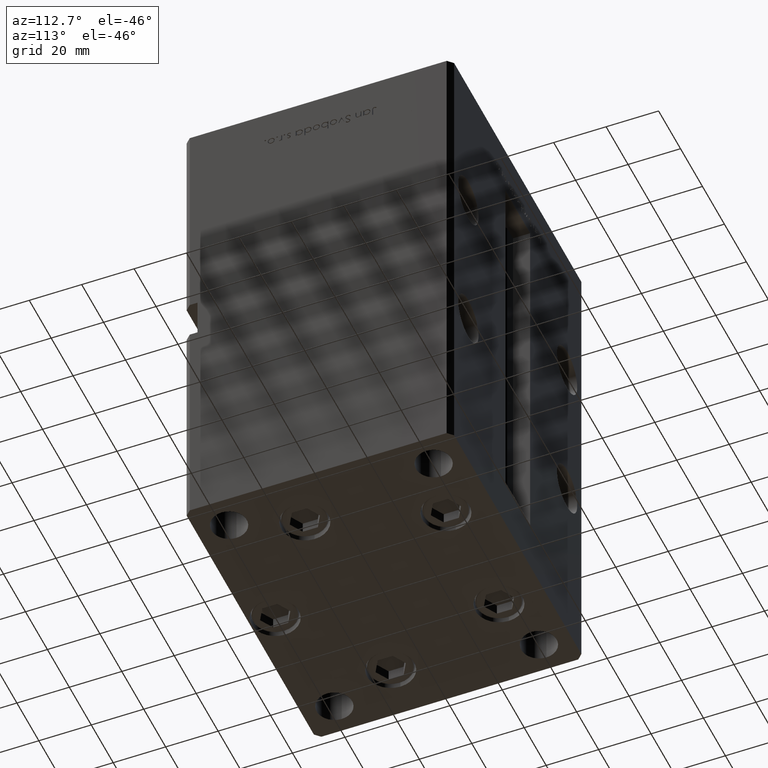
[diagram: clean part render]
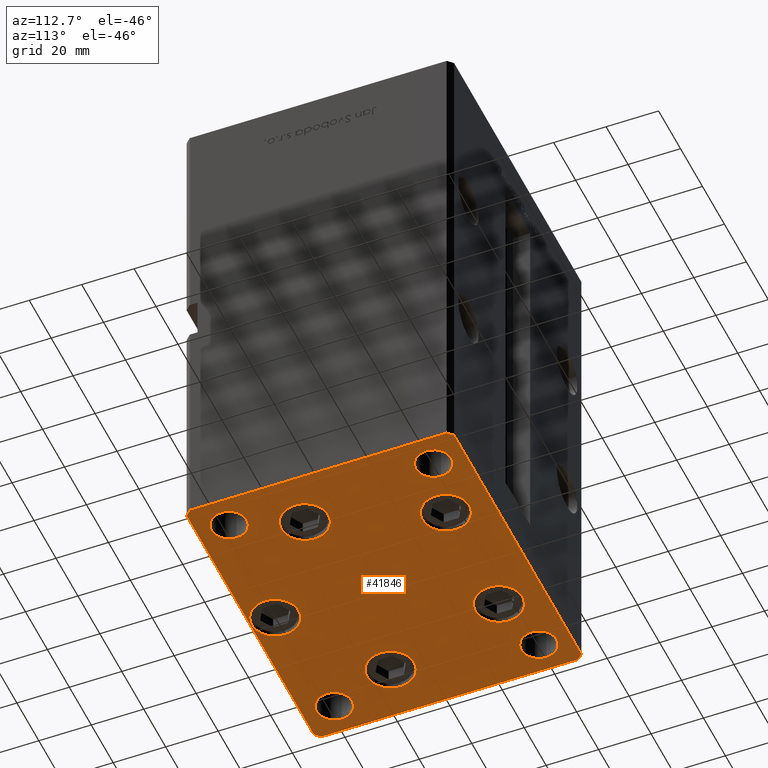
[diagram: same view with one face highlighted and labeled with its STEP entity id]
A machine part, auxiliary view. The second image highlights one B-rep face of the part: STEP entity #41846.
In plain terms, the highlighted planar face has unit normal (0, 0, -1).
Its self-contained STEP definition (entity closure, byte-faithful):
#2 = VECTOR ( 'NONE', #35529, 1000.000000000000114 ) ;
#147 = CIRCLE ( 'NONE', #11283, 6.749999999999999112 ) ;
#189 = VERTEX_POINT ( 'NONE', #41435 ) ;
#310 = DIRECTION ( 'NONE',  ( 1.000000000000000000, 0.000000000000000000, 0.000000000000000000 ) ) ;
#575 = EDGE_CURVE ( 'NONE', #31090, #14270, #12655, .T. ) ;
#710 = EDGE_CURVE ( 'NONE', #37038, #37658, #2965, .T. ) ;
#848 = DIRECTION ( 'NONE',  ( 0.000000000000000000, -0.000000000000000000, -1.000000000000000000 ) ) ;
#1165 = CARTESIAN_POINT ( 'NONE',  ( 54.75000000000000000, 38.99999999999999289, 0.000000000000000000 ) ) ;
#1216 = CARTESIAN_POINT ( 'NONE',  ( 0.000000000000000000, 0.000000000000000000, 0.000000000000000000 ) ) ;
#1289 = CARTESIAN_POINT ( 'NONE',  ( -48.00000000000000000, -39.00000000000000000, 0.000000000000000000 ) ) ;
#1869 = DIRECTION ( 'NONE',  ( 0.000000000000000000, -0.000000000000000000, -1.000000000000000000 ) ) ;
#2936 = DIRECTION ( 'NONE',  ( 0.000000000000000000, -0.000000000000000000, -1.000000000000000000 ) ) ;
#2965 = LINE ( 'NONE', #3763, #48657 ) ;
#3041 = VERTEX_POINT ( 'NONE', #12599 ) ;
#3409 = EDGE_LOOP ( 'NONE', ( #20303, #48973 ) ) ;
#3436 = AXIS2_PLACEMENT_3D ( 'NONE', #8300, #13399, #25784 ) ;
#3710 = CARTESIAN_POINT ( 'NONE',  ( 9.000000000000005329, -41.50000000000000000, 0.000000000000000000 ) ) ;
#3763 = CARTESIAN_POINT ( 'NONE',  ( 57.99999999999993605, 51.00000000000000711, 0.000000000000000000 ) ) ;
#3930 = VERTEX_POINT ( 'NONE', #27617 ) ;
#3958 = CIRCLE ( 'NONE', #25431, 9.000000000000001776 ) ;
#3974 = DIRECTION ( 'NONE',  ( 1.000000000000000000, 0.000000000000000000, 0.000000000000000000 ) ) ;
#4260 = CARTESIAN_POINT ( 'NONE',  ( -48.00000000000000000, 39.00000000000000000, 0.000000000000000000 ) ) ;
#4651 = CARTESIAN_POINT ( 'NONE',  ( -33.19288941894912170, 33.71875000000000000, 0.000000000000000000 ) ) ;
#4948 = CARTESIAN_POINT ( 'NONE',  ( 41.25000000000000000, -38.99999999999999289, 0.000000000000000000 ) ) ;
#5150 = AXIS2_PLACEMENT_3D ( 'NONE', #18492, #1869, #46956 ) ;
#5354 = DIRECTION ( 'NONE',  ( 0.000000000000000000, -0.000000000000000000, -1.000000000000000000 ) ) ;
#6347 = AXIS2_PLACEMENT_3D ( 'NONE', #1216, #33955, #22139 ) ;
#6478 = EDGE_CURVE ( 'NONE', #50531, #38560, #19718, .T. ) ;
#6516 = ORIENTED_EDGE ( 'NONE', *, *, #33621, .F. ) ;
#6522 = DIRECTION ( 'NONE',  ( 0.000000000000000000, -0.000000000000000000, -1.000000000000000000 ) ) ;
#6794 = VERTEX_POINT ( 'NONE', #10298 ) ;
#6889 = EDGE_CURVE ( 'NONE', #7821, #8878, #38767, .T. ) ;
#6908 = ORIENTED_EDGE ( 'NONE', *, *, #15453, .F. ) ;
#7009 = EDGE_CURVE ( 'NONE', #18938, #46397, #9391, .T. ) ;
#7212 = DIRECTION ( 'NONE',  ( 1.000000000000000000, 0.000000000000000000, 0.000000000000000000 ) ) ;
#7242 = ORIENTED_EDGE ( 'NONE', *, *, #33401, .T. ) ;
#7433 = EDGE_CURVE ( 'NONE', #43024, #3041, #28311, .T. ) ;
#7821 = VERTEX_POINT ( 'NONE', #45849 ) ;
#7942 = CARTESIAN_POINT ( 'NONE',  ( -60.00000000000000000, 48.99999999999995737, 0.000000000000000000 ) ) ;
#8300 = CARTESIAN_POINT ( 'NONE',  ( 5.082284216461515748E-15, -41.50000000000000000, 0.000000000000000000 ) ) ;
#8465 = CARTESIAN_POINT ( 'NONE',  ( 39.12657522565562829, -13.83333333333332860, 0.000000000000000000 ) ) ;
#8878 = VERTEX_POINT ( 'NONE', #32215 ) ;
#8879 = CARTESIAN_POINT ( 'NONE',  ( -48.00000000000000000, -39.00000000000000000, 0.000000000000000000 ) ) ;
#9042 = ORIENTED_EDGE ( 'NONE', *, *, #49230, .F. ) ;
#9391 = CIRCLE ( 'NONE', #44578, 9.000000000000001776 ) ;
#9775 = EDGE_CURVE ( 'NONE', #13511, #36603, #19016, .T. ) ;
#10134 = ORIENTED_EDGE ( 'NONE', *, *, #35389, .T. ) ;
#10298 = CARTESIAN_POINT ( 'NONE',  ( -30.12657522565562829, -13.83333333333333748, 0.000000000000000000 ) ) ;
#10677 = DIRECTION ( 'NONE',  ( -0.000000000000000000, 0.000000000000000000, 1.000000000000000000 ) ) ;
#10981 = CARTESIAN_POINT ( 'NONE',  ( 33.19288941894911460, 33.71875000000000711, 0.000000000000000000 ) ) ;
#11283 = AXIS2_PLACEMENT_3D ( 'NONE', #23583, #10677, #47198 ) ;
#12173 = EDGE_LOOP ( 'NONE', ( #7242, #41452 ) ) ;
#12599 = CARTESIAN_POINT ( 'NONE',  ( 15.19288941894911105, 33.71875000000000711, 0.000000000000000000 ) ) ;
#12655 = CIRCLE ( 'NONE', #40113, 6.749999999999999112 ) ;
#13279 = FACE_BOUND ( 'NONE', #12173, .T. ) ;
#13399 = DIRECTION ( 'NONE',  ( 0.000000000000000000, -0.000000000000000000, -1.000000000000000000 ) ) ;
#13511 = VERTEX_POINT ( 'NONE', #33962 ) ;
#13645 = VERTEX_POINT ( 'NONE', #19103 ) ;
#13647 = CARTESIAN_POINT ( 'NONE',  ( 58.00000000000000000, -51.00000000000000711, 0.000000000000000000 ) ) ;
#13776 = VECTOR ( 'NONE', #35392, 1000.000000000000000 ) ;
#13934 = CIRCLE ( 'NONE', #43933, 9.000000000000000000 ) ;
#14184 = DIRECTION ( 'NONE',  ( 0.7071067811865474617, 0.7071067811865474617, 0.000000000000000000 ) ) ;
#14266 = AXIS2_PLACEMENT_3D ( 'NONE', #37938, #26160, #50824 ) ;
#14270 = VERTEX_POINT ( 'NONE', #51733 ) ;
#14884 = CARTESIAN_POINT ( 'NONE',  ( -48.12657522565562829, -13.83333333333333925, 0.000000000000000000 ) ) ;
#14960 = ORIENTED_EDGE ( 'NONE', *, *, #15974, .T. ) ;
#15112 = AXIS2_PLACEMENT_3D ( 'NONE', #31932, #23099, #44536 ) ;
#15453 = EDGE_CURVE ( 'NONE', #3930, #22974, #32264, .T. ) ;
#15721 = EDGE_CURVE ( 'NONE', #3041, #43024, #44257, .T. ) ;
#15930 = LINE ( 'NONE', #44125, #22078 ) ;
#15974 = EDGE_CURVE ( 'NONE', #46397, #18938, #3958, .T. ) ;
#16034 = CARTESIAN_POINT ( 'NONE',  ( -57.99999999999997868, -51.00000000000001421, 0.000000000000000000 ) ) ;
#16118 = DIRECTION ( 'NONE',  ( 0.000000000000000000, -0.000000000000000000, -1.000000000000000000 ) ) ;
#16132 = DIRECTION ( 'NONE',  ( -0.7071067811865487940, 0.7071067811865463515, 0.000000000000000000 ) ) ;
#16164 = DIRECTION ( 'NONE',  ( 1.000000000000000000, 0.000000000000000000, 0.000000000000000000 ) ) ;
#16305 = EDGE_LOOP ( 'NONE', ( #42866, #9042 ) ) ;
#16339 = CIRCLE ( 'NONE', #46345, 9.000000000000001776 ) ;
#16395 = CARTESIAN_POINT ( 'NONE',  ( 59.99999999999994316, 49.00000000000000000, 0.000000000000000000 ) ) ;
#16664 = LINE ( 'NONE', #16395, #19579 ) ;
#16813 = ORIENTED_EDGE ( 'NONE', *, *, #7009, .T. ) ;
#17304 = LINE ( 'NONE', #7942, #25991 ) ;
#17821 = FACE_BOUND ( 'NONE', #21323, .T. ) ;
#17918 = EDGE_CURVE ( 'NONE', #41123, #30431, #49469, .T. ) ;
#18136 = CIRCLE ( 'NONE', #31875, 9.000000000000000000 ) ;
#18492 = CARTESIAN_POINT ( 'NONE',  ( 24.19288941894911460, 33.71875000000000711, 0.000000000000000000 ) ) ;
#18499 = CARTESIAN_POINT ( 'NONE',  ( 24.19288941894911460, 33.71875000000000711, 0.000000000000000000 ) ) ;
#18588 = ORIENTED_EDGE ( 'NONE', *, *, #35714, .T. ) ;
#18938 = VERTEX_POINT ( 'NONE', #20084 ) ;
#19016 = LINE ( 'NONE', #27879, #13776 ) ;
#19103 = CARTESIAN_POINT ( 'NONE',  ( 58.00000000000000000, -51.00000000000000711, 0.000000000000000000 ) ) ;
#19216 = ORIENTED_EDGE ( 'NONE', *, *, #40694, .T. ) ;
#19579 = VECTOR ( 'NONE', #16132, 1000.000000000000000 ) ;
#19718 = CIRCLE ( 'NONE', #3436, 9.000000000000000000 ) ;
#19765 = CIRCLE ( 'NONE', #41252, 6.749999999999999112 ) ;
#19986 = CARTESIAN_POINT ( 'NONE',  ( -41.25000000000000000, 39.00000000000000000, 0.000000000000000000 ) ) ;
#20084 = CARTESIAN_POINT ( 'NONE',  ( 30.12657522565562829, -13.83333333333332860, 0.000000000000000000 ) ) ;
#20114 = EDGE_CURVE ( 'NONE', #37658, #33557, #15930, .T. ) ;
#20303 = ORIENTED_EDGE ( 'NONE', *, *, #20921, .T. ) ;
#20921 = EDGE_CURVE ( 'NONE', #14270, #31090, #35819, .T. ) ;
#21323 = EDGE_LOOP ( 'NONE', ( #16813, #14960 ) ) ;
#21424 = VECTOR ( 'NONE', #14184, 1000.000000000000114 ) ;
#21617 = FACE_BOUND ( 'NONE', #48768, .T. ) ;
#21693 = CARTESIAN_POINT ( 'NONE',  ( -54.75000000000000000, -39.00000000000000000, 0.000000000000000000 ) ) ;
#21742 = DIRECTION ( 'NONE',  ( 1.000000000000000000, 0.000000000000000000, 0.000000000000000000 ) ) ;
#21881 = FACE_BOUND ( 'NONE', #16305, .T. ) ;
#22078 = VECTOR ( 'NONE', #44382, 1000.000000000000114 ) ;
#22139 = DIRECTION ( 'NONE',  ( 1.000000000000000000, 0.000000000000000000, 0.000000000000000000 ) ) ;
#22422 = AXIS2_PLACEMENT_3D ( 'NONE', #30322, #5354, #21742 ) ;
#22589 = EDGE_CURVE ( 'NONE', #36603, #37038, #16664, .T. ) ;
#22603 = ORIENTED_EDGE ( 'NONE', *, *, #26916, .T. ) ;
#22974 = VERTEX_POINT ( 'NONE', #19986 ) ;
#23099 = DIRECTION ( 'NONE',  ( 0.000000000000000000, -0.000000000000000000, -1.000000000000000000 ) ) ;
#23359 = CARTESIAN_POINT ( 'NONE',  ( -60.00000000000000000, 48.99999999999995737, 0.000000000000000000 ) ) ;
#23583 = CARTESIAN_POINT ( 'NONE',  ( 48.00000000000000000, 38.99999999999999289, 0.000000000000000000 ) ) ;
#23624 = CARTESIAN_POINT ( 'NONE',  ( 48.00000000000000000, -38.99999999999999289, 0.000000000000000000 ) ) ;
#24397 = DIRECTION ( 'NONE',  ( 1.000000000000000000, 1.196361017915039486E-16, 0.000000000000000000 ) ) ;
#24834 = EDGE_LOOP ( 'NONE', ( #36731, #43688 ) ) ;
#25278 = CARTESIAN_POINT ( 'NONE',  ( -39.12657522565562829, -13.83333333333333925, 0.000000000000000000 ) ) ;
#25415 = ORIENTED_EDGE ( 'NONE', *, *, #6478, .T. ) ;
#25431 = AXIS2_PLACEMENT_3D ( 'NONE', #8465, #44986, #40965 ) ;
#25784 = DIRECTION ( 'NONE',  ( 1.000000000000000000, 0.000000000000000000, 0.000000000000000000 ) ) ;
#25991 = VECTOR ( 'NONE', #33696, 1000.000000000000000 ) ;
#26160 = DIRECTION ( 'NONE',  ( -0.000000000000000000, 0.000000000000000000, 1.000000000000000000 ) ) ;
#26571 = ORIENTED_EDGE ( 'NONE', *, *, #6889, .T. ) ;
#26916 = EDGE_CURVE ( 'NONE', #13645, #13511, #37532, .T. ) ;
#26923 = DIRECTION ( 'NONE',  ( 0.000000000000000000, -0.000000000000000000, -1.000000000000000000 ) ) ;
#27559 = CARTESIAN_POINT ( 'NONE',  ( -24.19288941894912170, 33.71875000000000000, 0.000000000000000000 ) ) ;
#27617 = CARTESIAN_POINT ( 'NONE',  ( -54.75000000000000000, 39.00000000000000000, 0.000000000000000000 ) ) ;
#27666 = DIRECTION ( 'NONE',  ( -1.000000000000000000, -2.392722035830079958E-16, 0.000000000000000000 ) ) ;
#27879 = CARTESIAN_POINT ( 'NONE',  ( 60.00000000000001421, -48.99999999999999289, 0.000000000000000000 ) ) ;
#27992 = CARTESIAN_POINT ( 'NONE',  ( 48.00000000000000000, -38.99999999999999289, 0.000000000000000000 ) ) ;
#28140 = DIRECTION ( 'NONE',  ( -0.000000000000000000, 0.000000000000000000, 1.000000000000000000 ) ) ;
#28311 = CIRCLE ( 'NONE', #5150, 9.000000000000001776 ) ;
#28820 = AXIS2_PLACEMENT_3D ( 'NONE', #18499, #51256, #30860 ) ;
#29411 = VECTOR ( 'NONE', #24397, 1000.000000000000000 ) ;
#29656 = FACE_BOUND ( 'NONE', #33200, .T. ) ;
#29926 = FACE_BOUND ( 'NONE', #38408, .T. ) ;
#30155 = CIRCLE ( 'NONE', #22422, 9.000000000000000000 ) ;
#30322 = CARTESIAN_POINT ( 'NONE',  ( 5.082284216461515748E-15, -41.50000000000000000, 0.000000000000000000 ) ) ;
#30431 = VERTEX_POINT ( 'NONE', #32364 ) ;
#30782 = DIRECTION ( 'NONE',  ( 1.000000000000000000, 0.000000000000000000, 0.000000000000000000 ) ) ;
#30860 = DIRECTION ( 'NONE',  ( 1.000000000000000000, 0.000000000000000000, 0.000000000000000000 ) ) ;
#31090 = VERTEX_POINT ( 'NONE', #21693 ) ;
#31449 = CARTESIAN_POINT ( 'NONE',  ( -24.19288941894912170, 33.71875000000000000, 0.000000000000000000 ) ) ;
#31559 = VERTEX_POINT ( 'NONE', #1165 ) ;
#31821 = ORIENTED_EDGE ( 'NONE', *, *, #710, .T. ) ;
#31875 = AXIS2_PLACEMENT_3D ( 'NONE', #27559, #39369, #30782 ) ;
#31932 = CARTESIAN_POINT ( 'NONE',  ( -39.12657522565562829, -13.83333333333333925, 0.000000000000000000 ) ) ;
#32215 = CARTESIAN_POINT ( 'NONE',  ( -57.99999999999997868, -51.00000000000001421, 0.000000000000000000 ) ) ;
#32264 = CIRCLE ( 'NONE', #14266, 6.749999999999999112 ) ;
#32364 = CARTESIAN_POINT ( 'NONE',  ( 54.75000000000000000, -38.99999999999999289, 0.000000000000000000 ) ) ;
#32677 = CARTESIAN_POINT ( 'NONE',  ( -57.99999999999999289, 50.99999999999997868, 0.000000000000000000 ) ) ;
#33200 = EDGE_LOOP ( 'NONE', ( #6516, #6908 ) ) ;
#33401 = EDGE_CURVE ( 'NONE', #51715, #6794, #16339, .T. ) ;
#33536 = CARTESIAN_POINT ( 'NONE',  ( 57.99999999999993605, 51.00000000000000711, 0.000000000000000000 ) ) ;
#33557 = VERTEX_POINT ( 'NONE', #23359 ) ;
#33621 = EDGE_CURVE ( 'NONE', #22974, #3930, #19765, .T. ) ;
#33661 = ORIENTED_EDGE ( 'NONE', *, *, #9775, .T. ) ;
#33696 = DIRECTION ( 'NONE',  ( 0.000000000000000000, -1.000000000000000000, 0.000000000000000000 ) ) ;
#33762 = DIRECTION ( 'NONE',  ( 1.000000000000000000, 0.000000000000000000, 0.000000000000000000 ) ) ;
#33955 = DIRECTION ( 'NONE',  ( -0.000000000000000000, 0.000000000000000000, 1.000000000000000000 ) ) ;
#33962 = CARTESIAN_POINT ( 'NONE',  ( 60.00000000000001421, -48.99999999999999289, 0.000000000000000000 ) ) ;
#34184 = ORIENTED_EDGE ( 'NONE', *, *, #52627, .T. ) ;
#34219 = FACE_BOUND ( 'NONE', #24834, .T. ) ;
#34263 = CARTESIAN_POINT ( 'NONE',  ( -15.19288941894912170, 33.71875000000000000, 0.000000000000000000 ) ) ;
#35389 = EDGE_CURVE ( 'NONE', #38560, #50531, #30155, .T. ) ;
#35392 = DIRECTION ( 'NONE',  ( -7.080503983578803823E-16, 1.000000000000000000, 0.000000000000000000 ) ) ;
#35529 = DIRECTION ( 'NONE',  ( 0.7071067811865474617, -0.7071067811865474617, 0.000000000000000000 ) ) ;
#35714 = EDGE_CURVE ( 'NONE', #43378, #50267, #18136, .T. ) ;
#35746 = AXIS2_PLACEMENT_3D ( 'NONE', #27992, #6522, #40073 ) ;
#35819 = CIRCLE ( 'NONE', #45231, 6.749999999999999112 ) ;
#36058 = DIRECTION ( 'NONE',  ( 0.000000000000000000, -0.000000000000000000, -1.000000000000000000 ) ) ;
#36469 = DIRECTION ( 'NONE',  ( -0.000000000000000000, 0.000000000000000000, 1.000000000000000000 ) ) ;
#36603 = VERTEX_POINT ( 'NONE', #48754 ) ;
#36731 = ORIENTED_EDGE ( 'NONE', *, *, #52358, .T. ) ;
#37038 = VERTEX_POINT ( 'NONE', #33536 ) ;
#37143 = AXIS2_PLACEMENT_3D ( 'NONE', #40746, #28140, #3974 ) ;
#37532 = LINE ( 'NONE', #13647, #21424 ) ;
#37658 = VERTEX_POINT ( 'NONE', #32677 ) ;
#37938 = CARTESIAN_POINT ( 'NONE',  ( -48.00000000000000000, 39.00000000000000000, 0.000000000000000000 ) ) ;
#38241 = FACE_OUTER_BOUND ( 'NONE', #46631, .T. ) ;
#38315 = DIRECTION ( 'NONE',  ( 0.000000000000000000, -0.000000000000000000, -1.000000000000000000 ) ) ;
#38408 = EDGE_LOOP ( 'NONE', ( #43624, #41801 ) ) ;
#38550 = EDGE_LOOP ( 'NONE', ( #25415, #10134 ) ) ;
#38560 = VERTEX_POINT ( 'NONE', #3710 ) ;
#38767 = LINE ( 'NONE', #39034, #2 ) ;
#38839 = CIRCLE ( 'NONE', #42241, 6.749999999999999112 ) ;
#39034 = CARTESIAN_POINT ( 'NONE',  ( -60.00000000000000000, -49.00000000000000000, 0.000000000000000000 ) ) ;
#39369 = DIRECTION ( 'NONE',  ( 0.000000000000000000, -0.000000000000000000, -1.000000000000000000 ) ) ;
#40073 = DIRECTION ( 'NONE',  ( 1.000000000000000000, 0.000000000000000000, 0.000000000000000000 ) ) ;
#40113 = AXIS2_PLACEMENT_3D ( 'NONE', #8879, #848, #49967 ) ;
#40668 = EDGE_CURVE ( 'NONE', #31559, #189, #49159, .T. ) ;
#40694 = EDGE_CURVE ( 'NONE', #8878, #13645, #52827, .T. ) ;
#40746 = CARTESIAN_POINT ( 'NONE',  ( 48.00000000000000000, 38.99999999999999289, 0.000000000000000000 ) ) ;
#40965 = DIRECTION ( 'NONE',  ( 1.000000000000000000, 0.000000000000000000, 0.000000000000000000 ) ) ;
#41123 = VERTEX_POINT ( 'NONE', #4948 ) ;
#41252 = AXIS2_PLACEMENT_3D ( 'NONE', #4260, #36469, #49357 ) ;
#41316 = ORIENTED_EDGE ( 'NONE', *, *, #22589, .T. ) ;
#41435 = CARTESIAN_POINT ( 'NONE',  ( 41.25000000000000000, 38.99999999999999289, 0.000000000000000000 ) ) ;
#41452 = ORIENTED_EDGE ( 'NONE', *, *, #43921, .T. ) ;
#41468 = FACE_BOUND ( 'NONE', #38550, .T. ) ;
#41801 = ORIENTED_EDGE ( 'NONE', *, *, #7433, .T. ) ;
#41846 = ADVANCED_FACE ( 'NONE', ( #21617, #29926, #17821, #41468, #13279, #21881, #34219, #29656, #38241, #42525 ), #46288, .T. ) ;
#42241 = AXIS2_PLACEMENT_3D ( 'NONE', #23624, #2936, #7212 ) ;
#42525 = FACE_BOUND ( 'NONE', #3409, .T. ) ;
#42658 = CARTESIAN_POINT ( 'NONE',  ( 48.12657522565562829, -13.83333333333332682, 0.000000000000000000 ) ) ;
#42866 = ORIENTED_EDGE ( 'NONE', *, *, #40668, .F. ) ;
#43024 = VERTEX_POINT ( 'NONE', #10981 ) ;
#43378 = VERTEX_POINT ( 'NONE', #4651 ) ;
#43624 = ORIENTED_EDGE ( 'NONE', *, *, #15721, .T. ) ;
#43688 = ORIENTED_EDGE ( 'NONE', *, *, #17918, .T. ) ;
#43921 = EDGE_CURVE ( 'NONE', #6794, #51715, #45932, .T. ) ;
#43933 = AXIS2_PLACEMENT_3D ( 'NONE', #31449, #26923, #50800 ) ;
#44108 = CARTESIAN_POINT ( 'NONE',  ( 39.12657522565562829, -13.83333333333332860, 0.000000000000000000 ) ) ;
#44125 = CARTESIAN_POINT ( 'NONE',  ( -57.99999999999999289, 50.99999999999997868, 0.000000000000000000 ) ) ;
#44257 = CIRCLE ( 'NONE', #28820, 9.000000000000001776 ) ;
#44382 = DIRECTION ( 'NONE',  ( -0.7071067811865451302, -0.7071067811865500152, 0.000000000000000000 ) ) ;
#44536 = DIRECTION ( 'NONE',  ( 1.000000000000000000, 0.000000000000000000, 0.000000000000000000 ) ) ;
#44578 = AXIS2_PLACEMENT_3D ( 'NONE', #44108, #36058, #16164 ) ;
#44986 = DIRECTION ( 'NONE',  ( 0.000000000000000000, -0.000000000000000000, -1.000000000000000000 ) ) ;
#45201 = CARTESIAN_POINT ( 'NONE',  ( -8.999999999999994671, -41.50000000000000000, 0.000000000000000000 ) ) ;
#45231 = AXIS2_PLACEMENT_3D ( 'NONE', #1289, #38315, #33762 ) ;
#45849 = CARTESIAN_POINT ( 'NONE',  ( -60.00000000000000000, -49.00000000000000000, 0.000000000000000000 ) ) ;
#45932 = CIRCLE ( 'NONE', #15112, 9.000000000000001776 ) ;
#46288 = PLANE ( 'NONE',  #6347 ) ;
#46345 = AXIS2_PLACEMENT_3D ( 'NONE', #25278, #16118, #310 ) ;
#46397 = VERTEX_POINT ( 'NONE', #42658 ) ;
#46631 = EDGE_LOOP ( 'NONE', ( #26571, #19216, #22603, #33661, #41316, #31821, #52119, #34184 ) ) ;
#46956 = DIRECTION ( 'NONE',  ( 1.000000000000000000, 0.000000000000000000, 0.000000000000000000 ) ) ;
#47198 = DIRECTION ( 'NONE',  ( 1.000000000000000000, 0.000000000000000000, 0.000000000000000000 ) ) ;
#47497 = ORIENTED_EDGE ( 'NONE', *, *, #51897, .T. ) ;
#48657 = VECTOR ( 'NONE', #27666, 1000.000000000000000 ) ;
#48754 = CARTESIAN_POINT ( 'NONE',  ( 59.99999999999994316, 49.00000000000000000, 0.000000000000000000 ) ) ;
#48768 = EDGE_LOOP ( 'NONE', ( #18588, #47497 ) ) ;
#48973 = ORIENTED_EDGE ( 'NONE', *, *, #575, .T. ) ;
#49159 = CIRCLE ( 'NONE', #37143, 6.749999999999999112 ) ;
#49230 = EDGE_CURVE ( 'NONE', #189, #31559, #147, .T. ) ;
#49357 = DIRECTION ( 'NONE',  ( 1.000000000000000000, 0.000000000000000000, 0.000000000000000000 ) ) ;
#49469 = CIRCLE ( 'NONE', #35746, 6.749999999999999112 ) ;
#49967 = DIRECTION ( 'NONE',  ( 1.000000000000000000, 0.000000000000000000, 0.000000000000000000 ) ) ;
#50267 = VERTEX_POINT ( 'NONE', #34263 ) ;
#50531 = VERTEX_POINT ( 'NONE', #45201 ) ;
#50800 = DIRECTION ( 'NONE',  ( 1.000000000000000000, 0.000000000000000000, 0.000000000000000000 ) ) ;
#50824 = DIRECTION ( 'NONE',  ( 1.000000000000000000, 0.000000000000000000, 0.000000000000000000 ) ) ;
#51256 = DIRECTION ( 'NONE',  ( 0.000000000000000000, -0.000000000000000000, -1.000000000000000000 ) ) ;
#51715 = VERTEX_POINT ( 'NONE', #14884 ) ;
#51733 = CARTESIAN_POINT ( 'NONE',  ( -41.25000000000000000, -39.00000000000000000, 0.000000000000000000 ) ) ;
#51897 = EDGE_CURVE ( 'NONE', #50267, #43378, #13934, .T. ) ;
#52119 = ORIENTED_EDGE ( 'NONE', *, *, #20114, .T. ) ;
#52358 = EDGE_CURVE ( 'NONE', #30431, #41123, #38839, .T. ) ;
#52627 = EDGE_CURVE ( 'NONE', #33557, #7821, #17304, .T. ) ;
#52827 = LINE ( 'NONE', #16034, #29411 ) ;